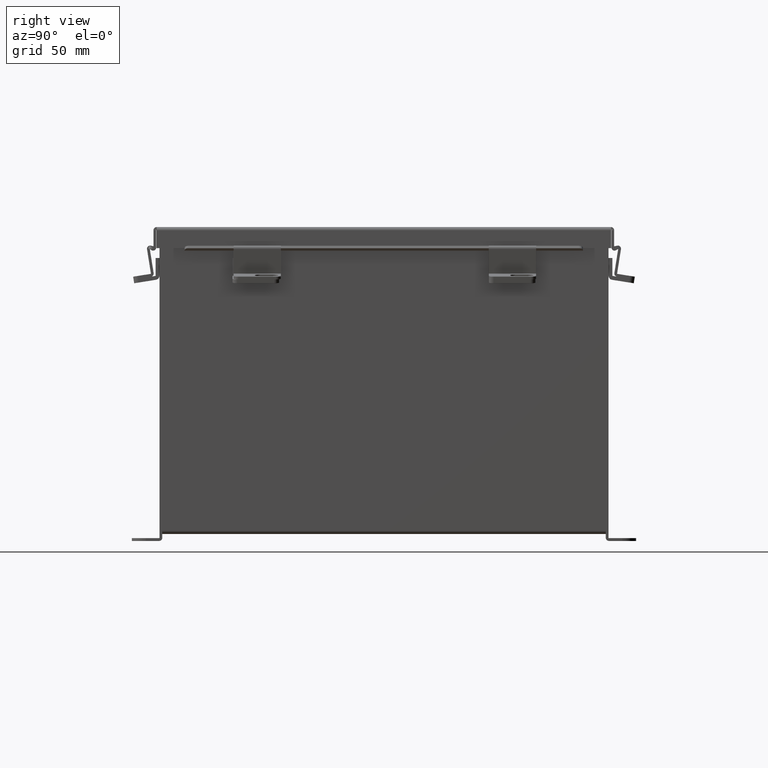
[diagram: clean part render]
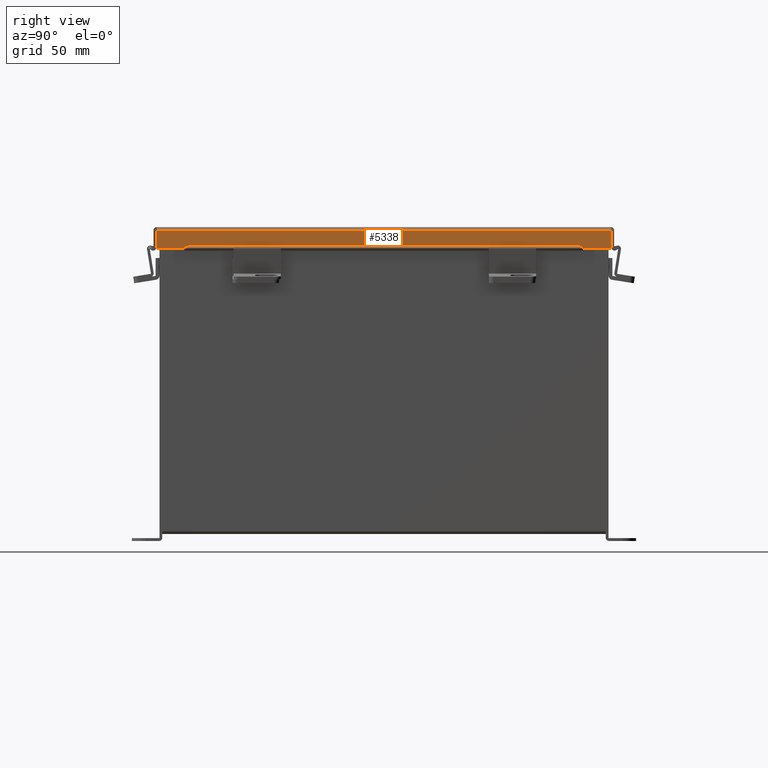
[diagram: same view with one face highlighted and labeled with its STEP entity id]
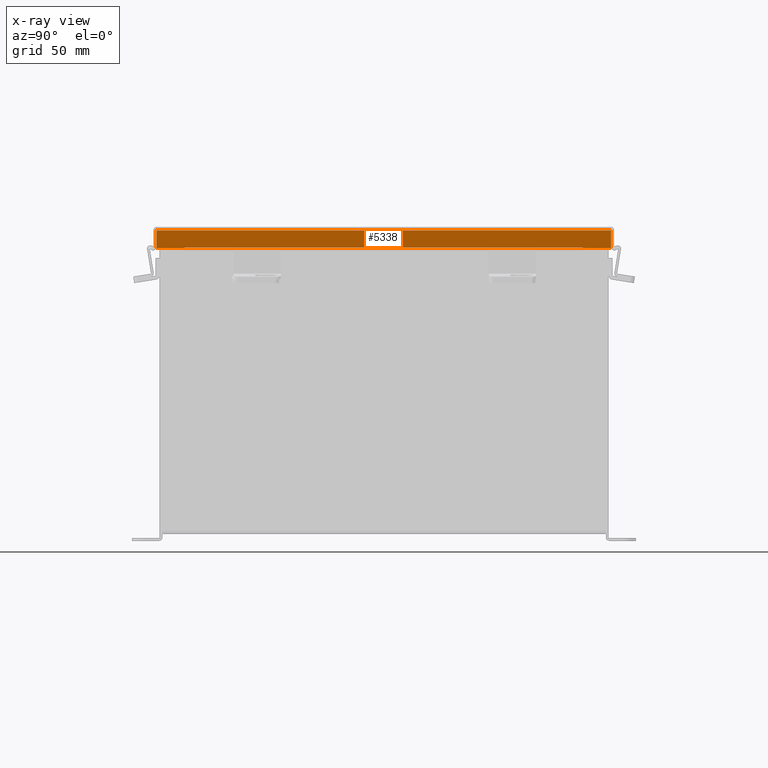
[diagram: x-ray of the same camera — body ghosted, the highlighted face saturated]
A machine part, right view. The second image highlights one B-rep face of the part: STEP entity #5338.
The next image is the same camera in x-ray: the body ghosted, the highlighted face saturated — about 0% of this face is hidden behind the body in this view.
In plain terms, the highlighted planar face has unit normal (-1, 0, -0).
Its self-contained STEP definition (entity closure, byte-faithful):
#393 = LINE ( 'NONE', #7715, #5238 ) ;
#421 = CARTESIAN_POINT ( 'NONE',  ( -5.156249999999999100, -6.074478932188134700, -2.338593775587836700E-014 ) ) ;
#652 = DIRECTION ( 'NONE',  ( -4.484872552701437800E-015, 0.0000000000000000000, 1.000000000000000000 ) ) ;
#900 = EDGE_CURVE ( 'NONE', #6256, #6065, #5115, .T. ) ;
#961 = EDGE_CURVE ( 'NONE', #6065, #5704, #393, .T. ) ;
#1012 = LINE ( 'NONE', #8206, #8762 ) ;
#1686 = ORIENTED_EDGE ( 'NONE', *, *, #2577, .F. ) ;
#2068 = CARTESIAN_POINT ( 'NONE',  ( -5.156249999999999100, 6.156249999999999100, 0.01299999999999978100 ) ) ;
#2177 = DIRECTION ( 'NONE',  ( 1.000000000000000000, 0.0000000000000000000, 4.484872552701437800E-015 ) ) ;
#2248 = ORIENTED_EDGE ( 'NONE', *, *, #3347, .F. ) ;
#2443 = EDGE_CURVE ( 'NONE', #9280, #3326, #2463, .T. ) ;
#2463 = LINE ( 'NONE', #6038, #7798 ) ;
#2577 = EDGE_CURVE ( 'NONE', #5928, #7889, #2679, .T. ) ;
#2607 = DIRECTION ( 'NONE',  ( 1.401985044024137100E-013, -7.009925220120685700E-014, -1.000000000000000000 ) ) ;
#2679 = LINE ( 'NONE', #7753, #4397 ) ;
#2683 = CARTESIAN_POINT ( 'NONE',  ( -5.156249999999999100, -6.074478932188134700, 0.01299999999999978100 ) ) ;
#2713 = VERTEX_POINT ( 'NONE', #8335 ) ;
#2763 = ORIENTED_EDGE ( 'NONE', *, *, #8709, .F. ) ;
#2966 = EDGE_CURVE ( 'NONE', #6256, #2713, #7669, .T. ) ;
#3326 = VERTEX_POINT ( 'NONE', #6405 ) ;
#3347 = EDGE_CURVE ( 'NONE', #7889, #5704, #8950, .T. ) ;
#3394 = DIRECTION ( 'NONE',  ( -7.009925220120533000E-014, 0.0000000000000000000, 1.000000000000000000 ) ) ;
#3615 = VECTOR ( 'NONE', #652, 39.37007874015748100 ) ;
#3802 = ORIENTED_EDGE ( 'NONE', *, *, #2443, .T. ) ;
#4043 = VECTOR ( 'NONE', #6259, 39.37007874015748100 ) ;
#4397 = VECTOR ( 'NONE', #6193, 39.37007874015748100 ) ;
#4552 = CARTESIAN_POINT ( 'NONE',  ( -5.156250000000000900, 5.324478932188136500, 0.4872999999999997300 ) ) ;
#4606 = DIRECTION ( 'NONE',  ( -0.0000000000000000000, 1.000000000000000000, 0.0000000000000000000 ) ) ;
#4936 = VECTOR ( 'NONE', #2607, 39.37007874015748100 ) ;
#5115 = LINE ( 'NONE', #421, #3615 ) ;
#5159 = CARTESIAN_POINT ( 'NONE',  ( -5.156250000000000900, -5.324478932188135600, 0.4872999999999997300 ) ) ;
#5162 = CARTESIAN_POINT ( 'NONE',  ( -5.156249999999999100, 0.0000000000000000000, -2.338593775587836700E-014 ) ) ;
#5238 = VECTOR ( 'NONE', #4606, 39.37007874015748100 ) ;
#5338 = ADVANCED_FACE ( 'NONE', ( #6404 ), #9625, .F. ) ;
#5356 = CARTESIAN_POINT ( 'NONE',  ( -5.156250000000000900, 5.324478932188135600, 0.4717115427318790400 ) ) ;
#5704 = VERTEX_POINT ( 'NONE', #5159 ) ;
#5928 = VERTEX_POINT ( 'NONE', #5356 ) ;
#5973 = DIRECTION ( 'NONE',  ( -0.0000000000000000000, 1.000000000000000000, 0.0000000000000000000 ) ) ;
#6038 = CARTESIAN_POINT ( 'NONE',  ( -5.156250000000000900, 0.0000000000000000000, 0.4872999999999997300 ) ) ;
#6065 = VERTEX_POINT ( 'NONE', #8402 ) ;
#6193 = DIRECTION ( 'NONE',  ( -0.0000000000000000000, -1.000000000000000000, -0.0000000000000000000 ) ) ;
#6256 = VERTEX_POINT ( 'NONE', #2683 ) ;
#6259 = DIRECTION ( 'NONE',  ( -0.0000000000000000000, 1.000000000000000000, -0.0000000000000000000 ) ) ;
#6260 = ORIENTED_EDGE ( 'NONE', *, *, #961, .T. ) ;
#6404 = FACE_OUTER_BOUND ( 'NONE', #7270, .T. ) ;
#6405 = CARTESIAN_POINT ( 'NONE',  ( -5.156250000000000900, 6.074478932188137400, 0.4872999999999997300 ) ) ;
#6635 = VECTOR ( 'NONE', #3394, 39.37007874015748100 ) ;
#6710 = LINE ( 'NONE', #7088, #4936 ) ;
#6740 = ORIENTED_EDGE ( 'NONE', *, *, #7465, .F. ) ;
#6748 = ORIENTED_EDGE ( 'NONE', *, *, #2966, .F. ) ;
#7088 = CARTESIAN_POINT ( 'NONE',  ( -5.156250000000003600, 5.324478932188136500, 0.4872999999999994000 ) ) ;
#7128 = CARTESIAN_POINT ( 'NONE',  ( -5.156250000000000900, -5.324478932188134700, 0.4717115427318790400 ) ) ;
#7270 = EDGE_LOOP ( 'NONE', ( #2763, #3802, #6740, #6748, #7359, #6260, #2248, #1686 ) ) ;
#7359 = ORIENTED_EDGE ( 'NONE', *, *, #900, .T. ) ;
#7426 = DIRECTION ( 'NONE',  ( 4.484872552701437800E-015, 0.0000000000000000000, -1.000000000000000000 ) ) ;
#7465 = EDGE_CURVE ( 'NONE', #2713, #3326, #1012, .T. ) ;
#7669 = LINE ( 'NONE', #2068, #4043 ) ;
#7715 = CARTESIAN_POINT ( 'NONE',  ( -5.156250000000000900, 0.0000000000000000000, 0.4872999999999997300 ) ) ;
#7753 = CARTESIAN_POINT ( 'NONE',  ( -5.156250000000000900, 5.324478932188136500, 0.4717115427318790400 ) ) ;
#7798 = VECTOR ( 'NONE', #5973, 39.37007874015748100 ) ;
#7881 = CARTESIAN_POINT ( 'NONE',  ( -5.156250000000000900, -5.324478932188134700, 0.4717115427318790400 ) ) ;
#7889 = VERTEX_POINT ( 'NONE', #7881 ) ;
#8206 = CARTESIAN_POINT ( 'NONE',  ( -5.156249999999999100, 6.074478932188137400, -3.350199796867981300E-016 ) ) ;
#8247 = DIRECTION ( 'NONE',  ( -4.484872552701437800E-015, 0.0000000000000000000, 1.000000000000000000 ) ) ;
#8335 = CARTESIAN_POINT ( 'NONE',  ( -5.156249999999999100, 6.074478932188137400, 0.01299999999999977400 ) ) ;
#8402 = CARTESIAN_POINT ( 'NONE',  ( -5.156250000000000900, -6.074478932188134700, 0.4872999999999997300 ) ) ;
#8709 = EDGE_CURVE ( 'NONE', #9280, #5928, #6710, .T. ) ;
#8762 = VECTOR ( 'NONE', #8247, 39.37007874015748100 ) ;
#8950 = LINE ( 'NONE', #7128, #6635 ) ;
#9189 = AXIS2_PLACEMENT_3D ( 'NONE', #5162, #2177, #7426 ) ;
#9280 = VERTEX_POINT ( 'NONE', #4552 ) ;
#9625 = PLANE ( 'NONE',  #9189 ) ;